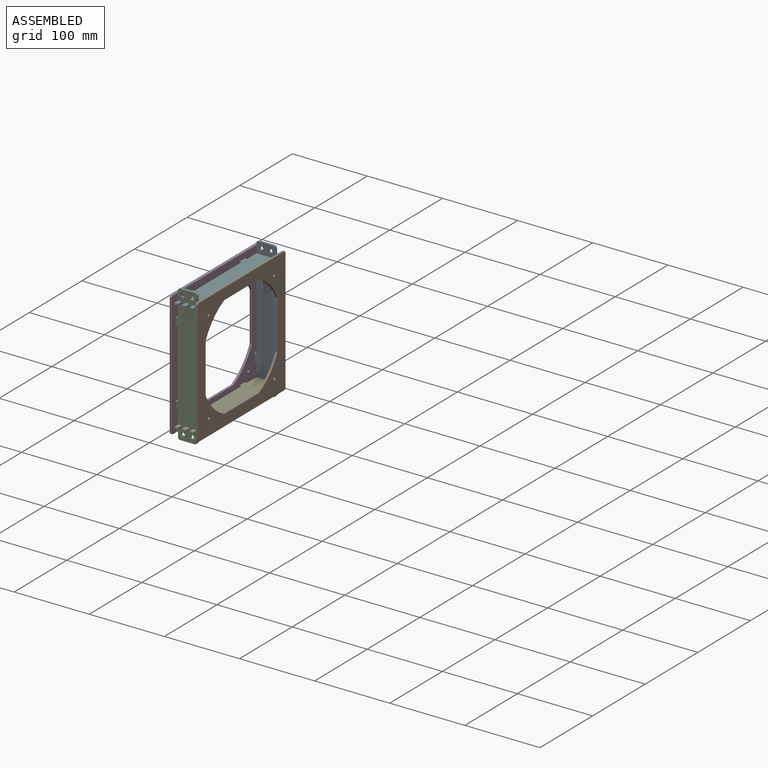
[diagram: assembled view]
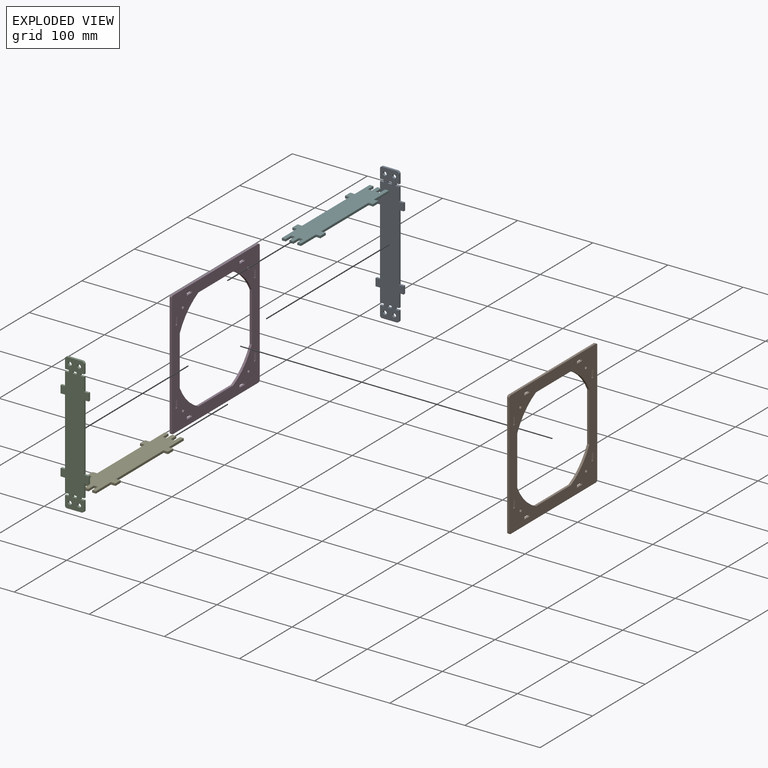
[diagram: exploded view]
GUIDED TOUR — MATED ASSEMBLY (Onshape document 5782b217e4b01a6b0f3e6d6c, AutoMate assembly 5782b217e4b01a6b0f3e6d6c_82af21a310dccb794c6f232e_d33640d6e8292c3f558e3241_default)

This assembly has 6 components, labeled P0..P5 below (a component is one placed occurrence of a part; the same part can appear more than once), held together by 6 mates. A mate is a constraint between two components; its type names the relative motion it leaves free:
  FASTENED — locks the two components together rigidly (no relative motion),
  SLIDER — leaves translation along the listed axis free.
Axis/direction vectors are unit vectors and 'through' points are millimeter coordinates, both in the assembly's world frame.

MATES
  1. SLIDER "Slider 1": P3 <-> P4, axis (-1.000, 0.000, 0.000) through (22.36, 39.31, -82.21) mm
  2. FASTENED "Fastened 4": P4 <-> P2, direction (0.000, -1.000, 0.000) through (30.36, 21.31, -82.21) mm
  3. FASTENED "Fastened 2": P5 <-> P0, direction (0.000, 1.000, 0.000) through (45.76, 167.31, 66.79) mm
  4. SLIDER "Slider 2": P1 <-> P4, axis (1.000, 0.000, 0.000) through (53.76, 39.31, -82.21) mm
  5. FASTENED "Fastened 1": P5 <-> P2, direction (0.000, -1.000, 0.000) through (30.36, 21.31, 66.79) mm
  6. FASTENED "Fastened 3": P0 <-> P4, direction (0.000, 1.000, 0.000) through (30.36, 167.31, -82.21) mm

ASSEMBLY ORDER
  1. P3 — the base component [order verified]
  2. P4 [order verified]
  3. P0 [order verified]
  4. P5 [order verified]
  5. P1 [order verified]
  6. P2 [order verified]
Order-tag legend:
  [order verified] — this step's position reverses a verified removal order: the component was checked to insert without passing through the ones already placed.

Of the 6 components, 2 carry the full construction recipe — the FeatureScript program that regenerates the part's solid from scratch; the rest are supplied as boundary geometry only.
Each toured component is shown spotlighted twice — in the assembled view, then in the exploded view, where a leader line traces a displaced component back to its assembled socket (saturated green if recipe-attached, orange if geometry-only; every other component desaturated gray) — followed by its recipe or geometry summary and the mates that hold it.
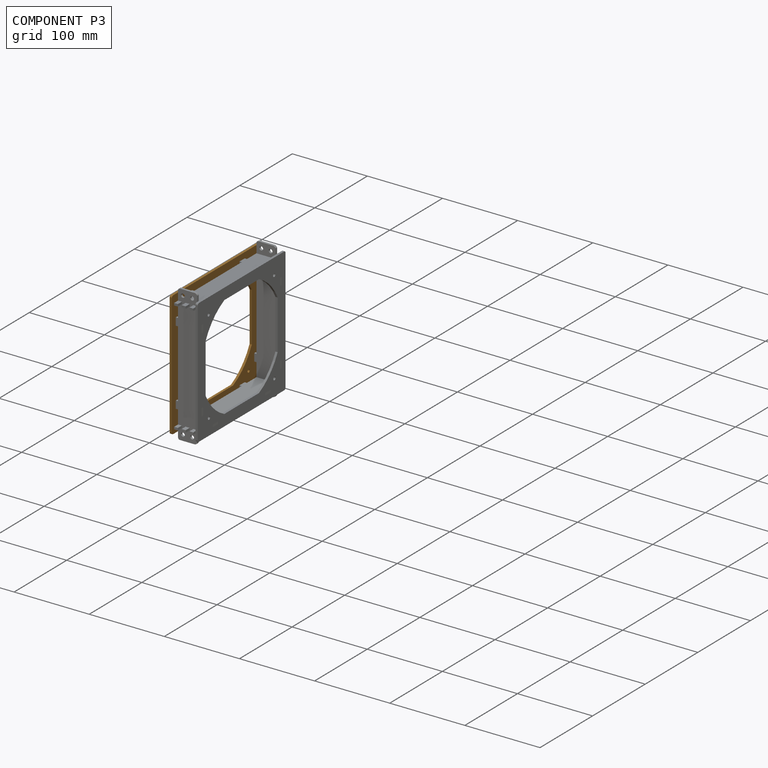
[diagram: component P3 — assembled]
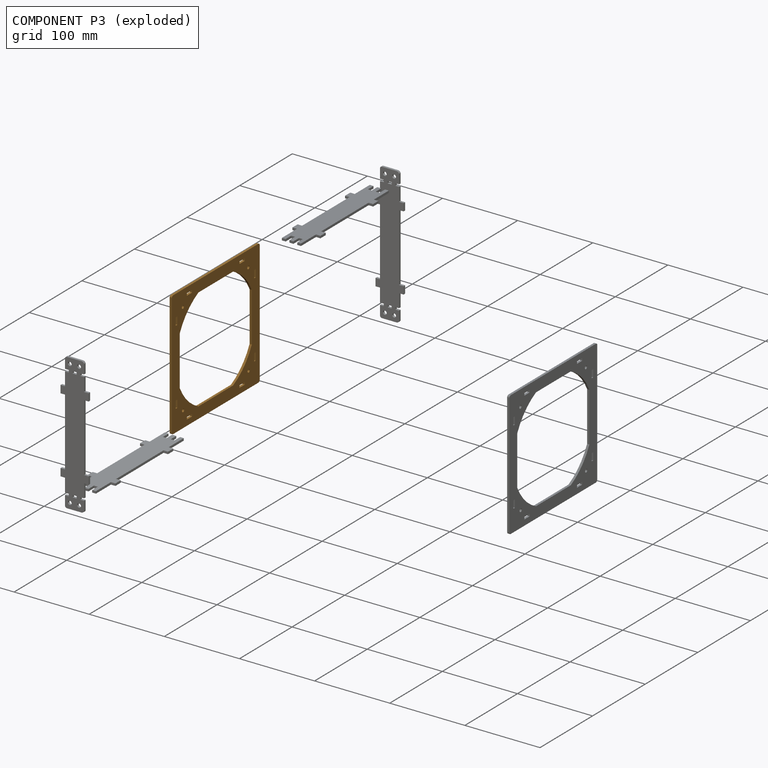
[diagram: component P3 — exploded]
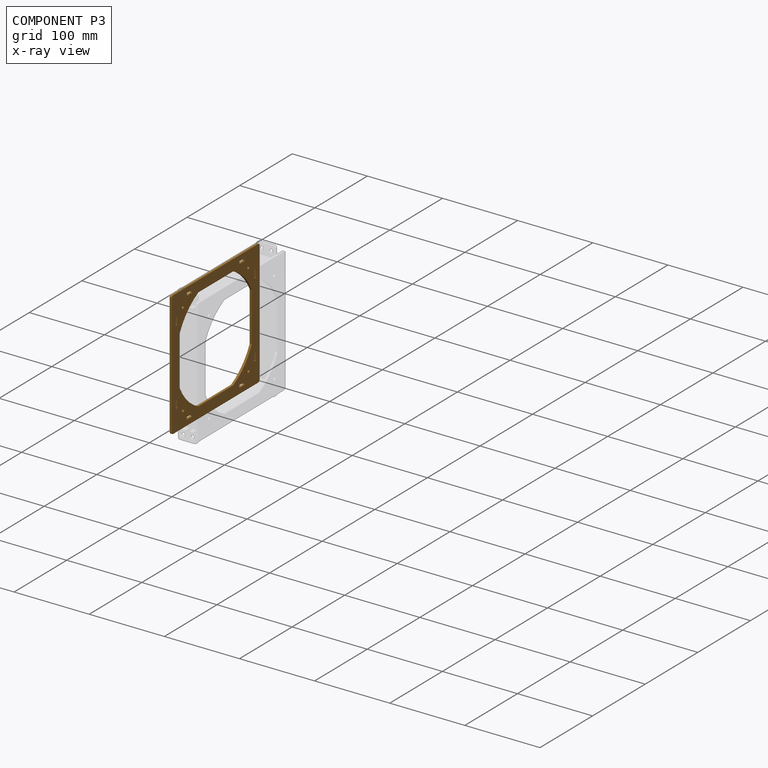
[diagram: component P3 — x-ray view]
COMPONENT P3 — geometry summary (no construction recipe available for this part):
  bounding box: 167.0 x 167.0 x 3.0 mm
  B-rep topology: 1 solid, 54 faces, 312 edges
  volume: 32314 mm^3 (39% of its bounding box)
  symmetry: 2-fold rotationally symmetric about the x axis; 2-fold rotationally symmetric about the y axis; 4-fold rotationally symmetric about the z axis; mirror-symmetric across its x mid-plane, y mid-plane, z mid-plane
Held by: SLIDER mate "Slider 1" to P4.
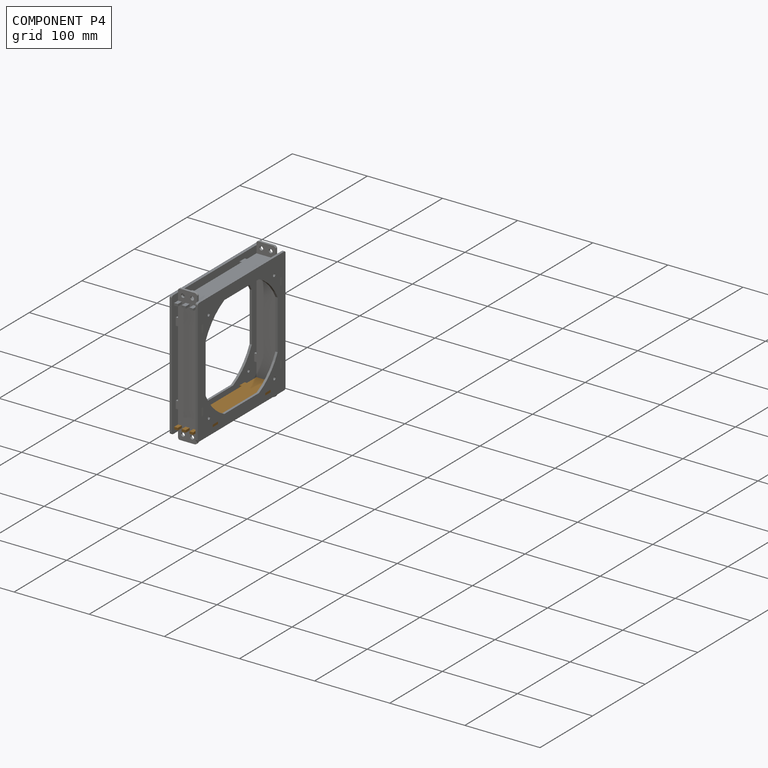
[diagram: component P4 — assembled]
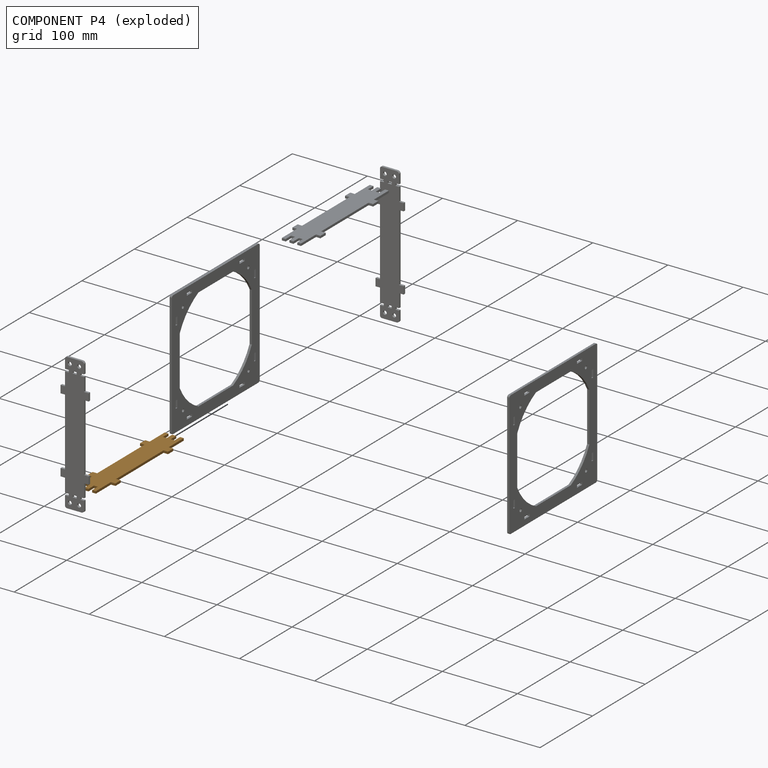
[diagram: component P4 — exploded]
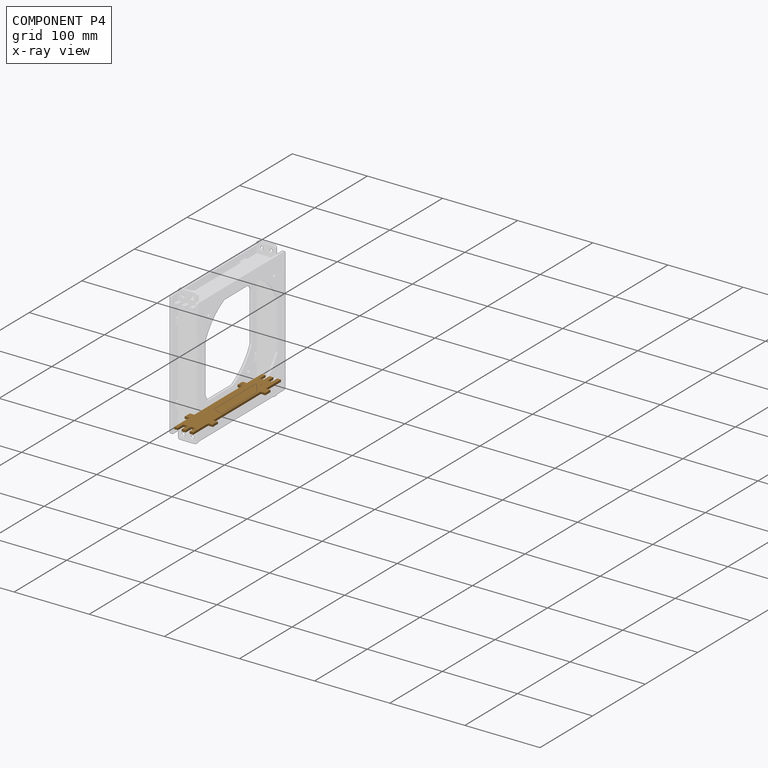
[diagram: component P4 — x-ray view]
COMPONENT P4 — geometry summary (no construction recipe available for this part):
  bounding box: 167.0 x 37.4 x 3.0 mm
  B-rep topology: 1 solid, 38 faces, 216 edges
  volume: 12815 mm^3 (68% of its bounding box)
  symmetry: 2-fold rotationally symmetric about the x axis; 2-fold rotationally symmetric about the y axis; 2-fold rotationally symmetric about the z axis; mirror-symmetric across its x mid-plane, y mid-plane, z mid-plane
Held by: SLIDER mate "Slider 1" to P3; FASTENED mate "Fastened 4" to P2; SLIDER mate "Slider 2" to P1; FASTENED mate "Fastened 3" to P0.
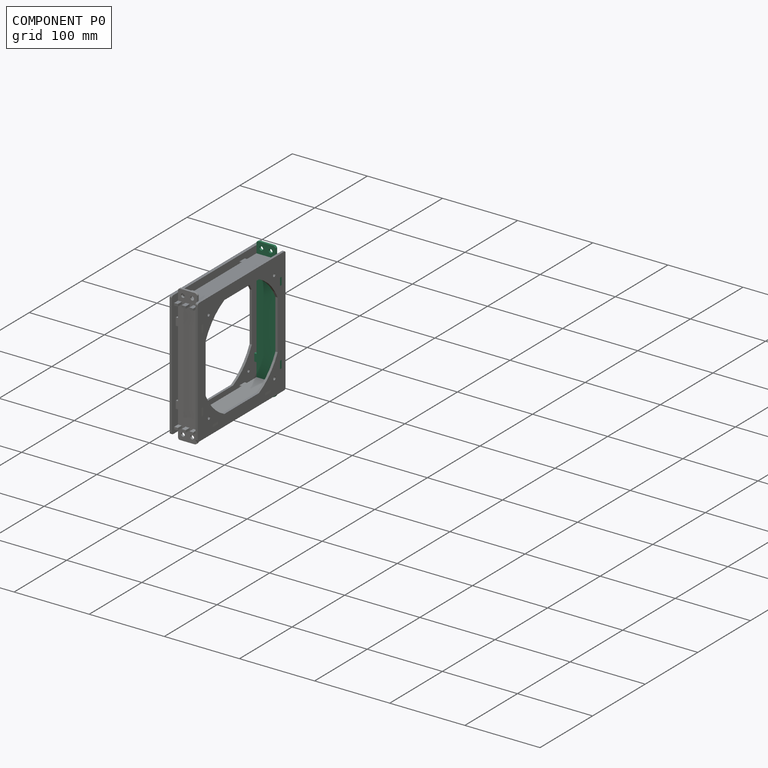
[diagram: component P0 — assembled]
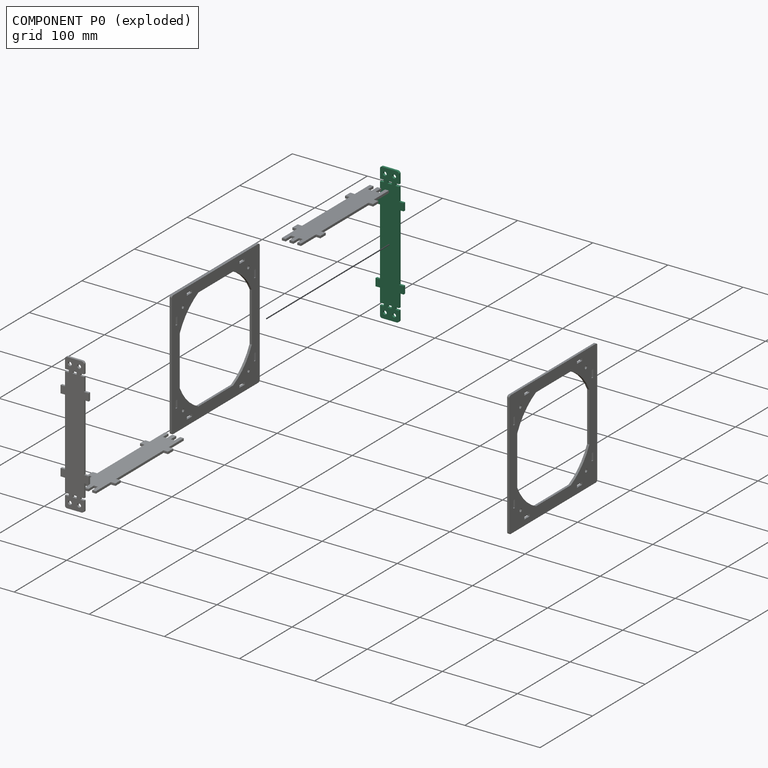
[diagram: component P0 — exploded]
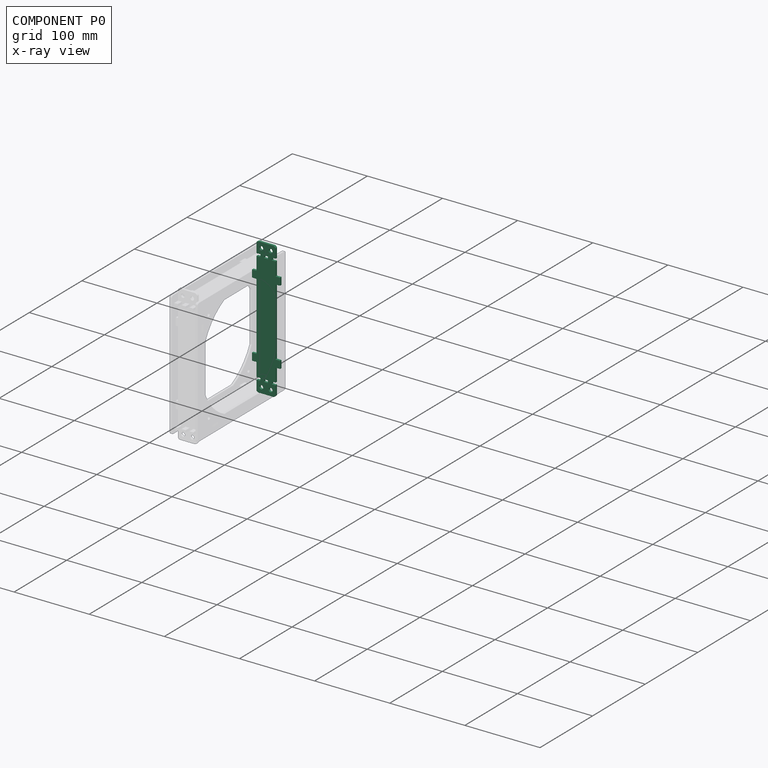
[diagram: component P0 — x-ray view]
COMPONENT P0 — recipe-attached (CADFS 00194423, mesh-verified: the recipe's output STEP matches this component's geometry to below the mesh-comparison resolution (tessellation chordal tolerance ~0.279 mm)).
Held by: FASTENED mate "Fastened 2" to P5; FASTENED mate "Fastened 3" to P4.
Construction recipe (FeatureScript — the CAD program that rebuilds this solid; sketch coordinates are in the units given by the * unit suffixes, e.g. mm):

FeatureScript 1511;
import(path : "onshape/std/geometry.fs", version : "1511.0");
import(path : "onshape/std/common.fs", version : "1511.0");
const mm = millimeter;
const VERTEX = EntityType.VERTEX;
const EDGE = EntityType.EDGE;
const FACE = EntityType.FACE;
const BODY = EntityType.BODY;
function v(x, y){return vector(x, y);}
function OD(order){return orderDisambiguation(order);}
function OSD(set){return originalSetDisambiguation(set);}
function TD(topology){return topologyDisambiguation(topology);}
function TDD(query){return trueDependencyDisambiguation(query);}
function sQuery(a, b, c) {return sketchEntityQuery(a, b, c);}

annotation { "Feature Type Name" : "Feature", "Feature Type Description" : "" }
export const myFeature = defineFeature(function(context is Context, id is Id, definition is map)
    precondition{}
    {
        {
            var Q0;
            Q0=qCreatedBy(makeId("Top.planeOp"),FACE);
            var sketch = newSketch(context, id + "F0", { "sketchPlane" : qUnion([Q0])});
            skLineSegment(sketch, "E0", {"start": v(0, 91) * mm, "end": v(-10, 91) * mm});
            skLineSegment(sketch, "E1", {"start": v(-12.5, 76) * mm, "end": v(-9.5, 76) * mm});
            skLineSegment(sketch, "E2", {"start": v(-9.5, 76) * mm, "end": v(-9.5, 73) * mm});
            skLineSegment(sketch, "E3", {"start": v(-9.5, 73) * mm, "end": v(-12.5, 73) * mm});
            skLineSegment(sketch, "E4", {"start": v(-12.5, 88.5) * mm, "end": v(-12.5, 76) * mm});
            skLineSegment(sketch, "E5", {"start": v(0, 76) * mm, "end": v(-3, 76) * mm});
            skLineSegment(sketch, "E6", {"start": v(-3, 76) * mm, "end": v(-3, 73) * mm});
            skLineSegment(sketch, "E7", {"start": v(-3, 73) * mm, "end": v(0, 73) * mm});
            skCircle(sketch, "E8", {"center": v(-6.25, 83.5) * mm, "radius": 2.5 * mm});
            skPoint(sketch, "E8.centerSnap0", {"position": v(-12.5, 83.5) * mm});
            skPoint(sketch, "E8.centerSnap1", {"position": v(-6.25, 91) * mm});
            skPoint(sketch, "E9.visualSharp", {"position": v(-12.5, 91) * mm});
            skArc(sketch, "E9.filletArc", {"start": v(-10, 91) * mm, "mid": v(-11.77, 90.27) * mm, "end": v(-12.5, 88.5) * mm});
            skLineSegment(sketch, "E10", {"start": v(-12.5, 35) * mm, "end": v(-17.84, 35) * mm});
            skLineSegment(sketch, "E11", {"start": v(-18.5, 35.66) * mm, "end": v(-18.5, 44.34) * mm});
            skLineSegment(sketch, "E12", {"start": v(-17.84, 45) * mm, "end": v(-12.5, 45) * mm});
            skLineSegment(sketch, "E13", {"start": v(-12.5, 45) * mm, "end": v(-12.5, 73) * mm});
            skLineSegment(sketch, "E14", {"start": v(-12.5, 35) * mm, "end": v(-12.5, 0) * mm});
            skPoint(sketch, "E15.visualSharp", {"position": v(-18.5, 45) * mm});
            skArc(sketch, "E15.filletArc", {"start": v(-17.84, 45) * mm, "mid": v(-18.3, 44.8) * mm, "end": v(-18.5, 44.34) * mm});
            skPoint(sketch, "E16.visualSharp", {"position": v(-18.5, 35) * mm});
            skArc(sketch, "E16.filletArc", {"start": v(-18.5, 35.66) * mm, "mid": v(-18.3, 35.2) * mm, "end": v(-17.84, 35) * mm});
            skArc(sketch, "E17.MirrorCS", {"start": v(10, 91) * mm, "mid": v(11.77, 90.27) * mm, "end": v(12.5, 88.5) * mm});
            skLineSegment(sketch, "E18.MirrorCS", {"start": v(9.5, 76) * mm, "end": v(9.5, 73) * mm});
            skLineSegment(sketch, "E19.MirrorCS", {"start": v(9.5, 73) * mm, "end": v(12.5, 73) * mm});
            skLineSegment(sketch, "E20.MirrorCS", {"start": v(3, 76) * mm, "end": v(3, 73) * mm});
            skLineSegment(sketch, "E21.MirrorCS", {"start": v(12.5, 76) * mm, "end": v(9.5, 76) * mm});
            skLineSegment(sketch, "E22.MirrorCS", {"start": v(12.5, 35) * mm, "end": v(17.84, 35) * mm});
            skLineSegment(sketch, "E23.MirrorCS", {"start": v(17.84, 45) * mm, "end": v(12.5, 45) * mm});
            skLineSegment(sketch, "E24.MirrorCS", {"start": v(3, 73) * mm, "end": v(0, 73) * mm});
            skLineSegment(sketch, "E25.MirrorCS", {"start": v(0, 76) * mm, "end": v(3, 76) * mm});
            skPoint(sketch, "E26.MirrorP", {"position": v(6.25, 91) * mm});
            skCircle(sketch, "E27.MirrorC", {"center": v(6.25, 83.5) * mm, "radius": 2.5 * mm});
            skLineSegment(sketch, "E28.MirrorCS", {"start": v(0, 91) * mm, "end": v(10, 91) * mm});
            skLineSegment(sketch, "E29.MirrorCS", {"start": v(12.5, 45) * mm, "end": v(12.5, 73) * mm});
            skLineSegment(sketch, "E30.MirrorCS", {"start": v(12.5, 35) * mm, "end": v(12.5, 0) * mm});
            skLineSegment(sketch, "E31.MirrorCS", {"start": v(12.5, 88.5) * mm, "end": v(12.5, 76) * mm});
            skArc(sketch, "E32.MirrorCS", {"start": v(-17.84, -45) * mm, "mid": v(-18.3, -44.8) * mm, "end": v(-18.5, -44.34) * mm});
            skArc(sketch, "E33.MirrorCS", {"start": v(17.84, -45) * mm, "mid": v(18.3, -44.8) * mm, "end": v(18.5, -44.34) * mm});
            skArc(sketch, "E34.MirrorCS", {"start": v(-18.5, -35.66) * mm, "mid": v(-18.3, -35.2) * mm, "end": v(-17.84, -35) * mm});
            skArc(sketch, "E35.MirrorCS", {"start": v(-10, -91) * mm, "mid": v(-11.77, -90.27) * mm, "end": v(-12.5, -88.5) * mm});
            skArc(sketch, "E36.MirrorCS", {"start": v(32.1, -123.66) * mm, "mid": v(31.9, -123.2) * mm, "end": v(31.44, -123) * mm});
            skArc(sketch, "E37.MirrorCS", {"start": v(10, -91) * mm, "mid": v(11.77, -90.27) * mm, "end": v(12.5, -88.5) * mm});
            skLineSegment(sketch, "E38.MirrorCS", {"start": v(-17.84, -45) * mm, "end": v(-12.5, -45) * mm});
            skLineSegment(sketch, "E39.MirrorCS", {"start": v(9.5, -76) * mm, "end": v(9.5, -73) * mm});
            skLineSegment(sketch, "E40.MirrorCS", {"start": v(12.5, -76) * mm, "end": v(9.5, -76) * mm});
            skLineSegment(sketch, "E41.MirrorCS", {"start": v(3, -73) * mm, "end": v(0, -73) * mm});
            skLineSegment(sketch, "E42.MirrorCS", {"start": v(12.5, -35) * mm, "end": v(17.84, -35) * mm});
            skLineSegment(sketch, "E43.MirrorCS", {"start": v(3, -76) * mm, "end": v(3, -73) * mm});
            skLineSegment(sketch, "E44.MirrorCS", {"start": v(17.84, -45) * mm, "end": v(12.5, -45) * mm});
            skLineSegment(sketch, "E45.MirrorCS", {"start": v(-9.5, -73) * mm, "end": v(-12.5, -73) * mm});
            skLineSegment(sketch, "E46.MirrorCS", {"start": v(0, -76) * mm, "end": v(3, -76) * mm});
            skLineSegment(sketch, "E47.MirrorCS", {"start": v(-12.5, -76) * mm, "end": v(-9.5, -76) * mm});
            skLineSegment(sketch, "E48.MirrorCS", {"start": v(-9.5, -76) * mm, "end": v(-9.5, -73) * mm});
            skLineSegment(sketch, "E49.MirrorCS", {"start": v(0, -76) * mm, "end": v(-3, -76) * mm});
            skLineSegment(sketch, "E50.MirrorCS", {"start": v(-3, -76) * mm, "end": v(-3, -73) * mm});
            skLineSegment(sketch, "E51.MirrorCS", {"start": v(-3, -73) * mm, "end": v(0, -73) * mm});
            skLineSegment(sketch, "E52.MirrorCS", {"start": v(9.5, -73) * mm, "end": v(12.5, -73) * mm});
            skLineSegment(sketch, "E53.MirrorCS", {"start": v(-12.5, -35) * mm, "end": v(-17.84, -35) * mm});
            skLineSegment(sketch, "E54.MirrorCS", {"start": v(0, -91) * mm, "end": v(10, -91) * mm});
            skLineSegment(sketch, "E55.MirrorCS", {"start": v(-18.5, -35.66) * mm, "end": v(-18.5, -44.34) * mm});
            skLineSegment(sketch, "E56.MirrorCS", {"start": v(12.5, -88.5) * mm, "end": v(12.5, -76) * mm});
            skPoint(sketch, "E57.MirrorP", {"position": v(-12.5, -83.5) * mm});
            skPoint(sketch, "E58.MirrorP", {"position": v(-12.5, -91) * mm});
            skLineSegment(sketch, "E59.MirrorCS", {"start": v(18.5, -35.66) * mm, "end": v(18.5, -44.34) * mm});
            skPoint(sketch, "E60.MirrorP", {"position": v(-18.5, -45) * mm});
            skPoint(sketch, "E61.MirrorP", {"position": v(12.5, -91) * mm});
            skPoint(sketch, "E62.MirrorP", {"position": v(-6.25, -91) * mm});
            skCircle(sketch, "E63.MirrorC", {"center": v(6.25, -83.5) * mm, "radius": 2.5 * mm});
            skLineSegment(sketch, "E64.MirrorCS", {"start": v(-12.5, -88.5) * mm, "end": v(-12.5, -76) * mm});
            skLineSegment(sketch, "E65.MirrorCS", {"start": v(0, -91) * mm, "end": v(-10, -91) * mm});
            skLineSegment(sketch, "E66.MirrorCS", {"start": v(-12.5, -35) * mm, "end": v(-12.5, 0) * mm});
            skPoint(sketch, "E67.MirrorP", {"position": v(12.5, -83.5) * mm});
            skCircle(sketch, "E68.MirrorC", {"center": v(-6.25, -83.5) * mm, "radius": 2.5 * mm});
            skLineSegment(sketch, "E69.MirrorCS", {"start": v(-12.5, -45) * mm, "end": v(-12.5, -73) * mm});
            skLineSegment(sketch, "E70.MirrorCS", {"start": v(12.5, -35) * mm, "end": v(12.5, 0) * mm});
            skPoint(sketch, "E71.MirrorP", {"position": v(-18.5, -35) * mm});
            skLineSegment(sketch, "E72.MirrorCS", {"start": v(12.5, -45) * mm, "end": v(12.5, -73) * mm});
            skPoint(sketch, "E73.MirrorP", {"position": v(32.1, -123) * mm});
            skPoint(sketch, "E74.MirrorP", {"position": v(6.25, -91) * mm});
            skLineSegment(sketch, "E75", {"start": v(35.48, 76) * mm, "end": v(40.48, 76) * mm});
            skLineSegment(sketch, "E76", {"start": v(40.48, 76) * mm, "end": v(40.48, 73) * mm});
            skLineSegment(sketch, "E77", {"start": v(40.48, 73) * mm, "end": v(35.48, 73) * mm});
            skLineSegment(sketch, "E78", {"start": v(35.48, 88.56) * mm, "end": v(35.48, 76) * mm});
            skLineSegment(sketch, "E79", {"start": v(45.48, 76) * mm, "end": v(45.48, 73) * mm});
            skCircle(sketch, "E80", {"center": v(41.83, 83.56) * mm, "radius": 2.5 * mm});
            skPoint(sketch, "E80.centerSnap0", {"position": v(35.48, 83.56) * mm});
            skPoint(sketch, "E80.centerSnap1", {"position": v(41.83, 91.06) * mm});
            skPoint(sketch, "E81.visualSharp", {"position": v(35.48, 91.13) * mm});
            skArc(sketch, "E81.filletArc", {"start": v(37.98, 91.06) * mm, "mid": v(36.2, 90.33) * mm, "end": v(35.48, 88.56) * mm});
            skLineSegment(sketch, "E82", {"start": v(35.48, 45) * mm, "end": v(29.48, 45) * mm});
            skLineSegment(sketch, "E83", {"start": v(29.48, 55) * mm, "end": v(35.48, 55) * mm});
            skLineSegment(sketch, "E84", {"start": v(35.48, 55) * mm, "end": v(35.48, 73) * mm});
            skLineSegment(sketch, "E85", {"start": v(35.48, 45) * mm, "end": v(35.48, 0) * mm});
            skArc(sketch, "E86.MirrorCS", {"start": v(57.98, 91.06) * mm, "mid": v(59.74, 90.18) * mm, "end": v(60.88, 88.56) * mm});
            skLineSegment(sketch, "E87.MirrorCS", {"start": v(55.88, 76) * mm, "end": v(55.88, 73) * mm});
            skLineSegment(sketch, "E88.MirrorCS", {"start": v(55.88, 73) * mm, "end": v(60.88, 73) * mm});
            skLineSegment(sketch, "E89.MirrorCS", {"start": v(50.88, 76) * mm, "end": v(50.88, 73) * mm});
            skLineSegment(sketch, "E90.MirrorCS", {"start": v(60.88, 76) * mm, "end": v(55.88, 76) * mm});
            skLineSegment(sketch, "E91.MirrorCS", {"start": v(60.88, 45) * mm, "end": v(66.88, 45) * mm});
            skLineSegment(sketch, "E92.MirrorCS", {"start": v(66.88, 55) * mm, "end": v(60.88, 55) * mm});
            skPoint(sketch, "E93.MirrorP", {"position": v(54.23, 91.06) * mm});
            skCircle(sketch, "E94.MirrorC", {"center": v(54.23, 83.56) * mm, "radius": 2.5 * mm});
            skPoint(sketch, "E95.MirrorP", {"position": v(60.48, 91.06) * mm});
            skPoint(sketch, "E96.MirrorP", {"position": v(60.48, 83.56) * mm});
            skLineSegment(sketch, "E97.MirrorCS", {"start": v(60.88, 55) * mm, "end": v(60.88, 73) * mm});
            skLineSegment(sketch, "E98.MirrorCS", {"start": v(60.88, 45) * mm, "end": v(60.88, 0) * mm});
            skLineSegment(sketch, "E99.MirrorCS", {"start": v(60.88, 88.56) * mm, "end": v(60.88, 76) * mm});
            skLineSegment(sketch, "E100", {"start": v(37.98, 91.06) * mm, "end": v(57.98, 91.06) * mm});
            skLineSegment(sketch, "E101", {"start": v(45.48, 76) * mm, "end": v(50.88, 76) * mm});
            skLineSegment(sketch, "E102", {"start": v(50.88, 73) * mm, "end": v(45.48, 73) * mm});
            skLineSegment(sketch, "E103", {"start": v(17.84, 45) * mm, "end": v(17.84, 35) * mm});
            skLineSegment(sketch, "E104", {"start": v(29.48, 55) * mm, "end": v(29.48, 45) * mm});
            skLineSegment(sketch, "E105", {"start": v(66.88, 55) * mm, "end": v(66.88, 45) * mm});
            skArc(sketch, "E106.MirrorCS", {"start": v(37.98, -91.06) * mm, "mid": v(36.2, -90.33) * mm, "end": v(35.48, -88.56) * mm});
            skArc(sketch, "E107.MirrorCS", {"start": v(57.98, -91.06) * mm, "mid": v(59.74, -90.18) * mm, "end": v(60.88, -88.56) * mm});
            skLineSegment(sketch, "E108.MirrorCS", {"start": v(45.48, -76) * mm, "end": v(45.48, -73) * mm});
            skLineSegment(sketch, "E109.MirrorCS", {"start": v(55.88, -76) * mm, "end": v(55.88, -73) * mm});
            skLineSegment(sketch, "E110.MirrorCS", {"start": v(66.88, -55) * mm, "end": v(60.88, -55) * mm});
            skLineSegment(sketch, "E111.MirrorCS", {"start": v(35.48, -76) * mm, "end": v(40.48, -76) * mm});
            skLineSegment(sketch, "E112.MirrorCS", {"start": v(55.88, -73) * mm, "end": v(60.88, -73) * mm});
            skLineSegment(sketch, "E113.MirrorCS", {"start": v(35.48, -45) * mm, "end": v(29.48, -45) * mm});
            skLineSegment(sketch, "E114.MirrorCS", {"start": v(45.48, -76) * mm, "end": v(50.88, -76) * mm});
            skLineSegment(sketch, "E115.MirrorCS", {"start": v(60.88, -76) * mm, "end": v(55.88, -76) * mm});
            skLineSegment(sketch, "E116.MirrorCS", {"start": v(50.88, -76) * mm, "end": v(50.88, -73) * mm});
            skLineSegment(sketch, "E117.MirrorCS", {"start": v(29.48, -55) * mm, "end": v(35.48, -55) * mm});
            skLineSegment(sketch, "E118.MirrorCS", {"start": v(50.88, -73) * mm, "end": v(45.48, -73) * mm});
            skLineSegment(sketch, "E119.MirrorCS", {"start": v(40.48, -73) * mm, "end": v(35.48, -73) * mm});
            skLineSegment(sketch, "E120.MirrorCS", {"start": v(40.48, -76) * mm, "end": v(40.48, -73) * mm});
            skLineSegment(sketch, "E121.MirrorCS", {"start": v(60.88, -45) * mm, "end": v(66.88, -45) * mm});
            skLineSegment(sketch, "E122.MirrorCS", {"start": v(60.88, -88.56) * mm, "end": v(60.88, -76) * mm});
            skCircle(sketch, "E123.MirrorC", {"center": v(54.23, -83.56) * mm, "radius": 2.5 * mm});
            skLineSegment(sketch, "E124.MirrorCS", {"start": v(35.48, -88.56) * mm, "end": v(35.48, -76) * mm});
            skPoint(sketch, "E125.MirrorP", {"position": v(35.48, -91.13) * mm});
            skLineSegment(sketch, "E126.MirrorCS", {"start": v(29.48, -55) * mm, "end": v(29.48, -45) * mm});
            skPoint(sketch, "E127.MirrorP", {"position": v(41.83, -91.06) * mm});
            skPoint(sketch, "E128.MirrorP", {"position": v(60.48, -83.56) * mm});
            skLineSegment(sketch, "E129.MirrorCS", {"start": v(60.88, -45) * mm, "end": v(60.88, 0) * mm});
            skLineSegment(sketch, "E130.MirrorCS", {"start": v(37.98, -91.06) * mm, "end": v(57.98, -91.06) * mm});
            skCircle(sketch, "E131.MirrorC", {"center": v(41.83, -83.56) * mm, "radius": 2.5 * mm});
            skLineSegment(sketch, "E132.MirrorCS", {"start": v(35.48, -55) * mm, "end": v(35.48, -73) * mm});
            skPoint(sketch, "E133.MirrorP", {"position": v(35.48, -83.56) * mm});
            skPoint(sketch, "E134.MirrorP", {"position": v(60.48, -91.06) * mm});
            skLineSegment(sketch, "E135.MirrorCS", {"start": v(60.88, -55) * mm, "end": v(60.88, -73) * mm});
            skLineSegment(sketch, "E136.MirrorCS", {"start": v(35.48, -45) * mm, "end": v(35.48, 0) * mm});
            skPoint(sketch, "E137.MirrorP", {"position": v(54.23, -91.06) * mm});
            skLineSegment(sketch, "E138.MirrorCS", {"start": v(66.88, -55) * mm, "end": v(66.88, -45) * mm});
            skSolve(sketch);
        }
        {
            var Q0;
            Q0=makeQuery(id+"F0.imprint","IMPRINT",FACE,{"disambiguationData":[TD([[makeQuery(id+"F0.imprint","IMPRINT",EDGE,{"derivedFrom":sQuery(id+"F0.wireOp",EDGE,"E75")}),1.0]])]});
            extrude(context, id + "F1", {"entities" : qUnion([Q0]), "depth" : 3 * mm});
        }
    });
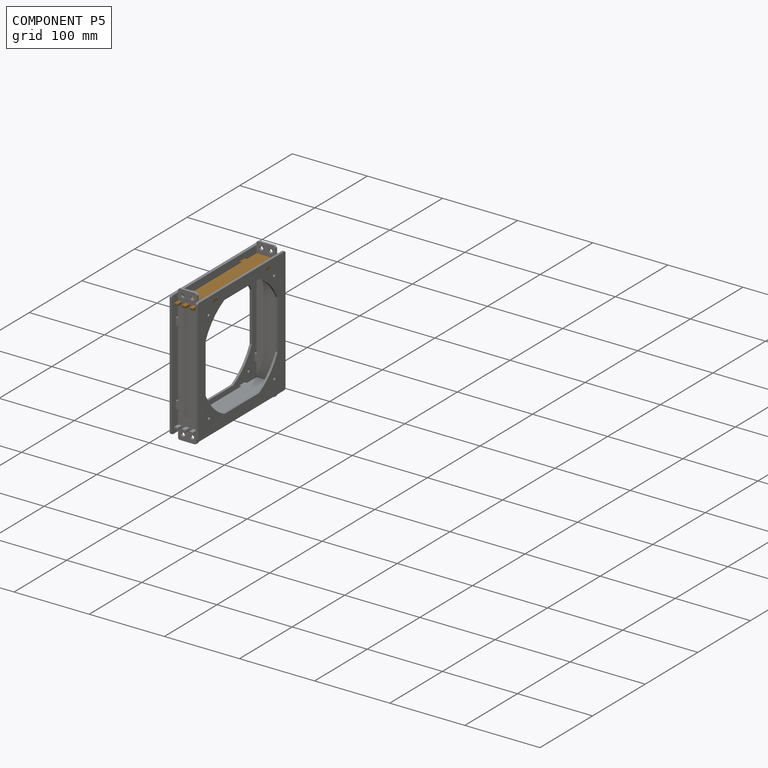
[diagram: component P5 — assembled]
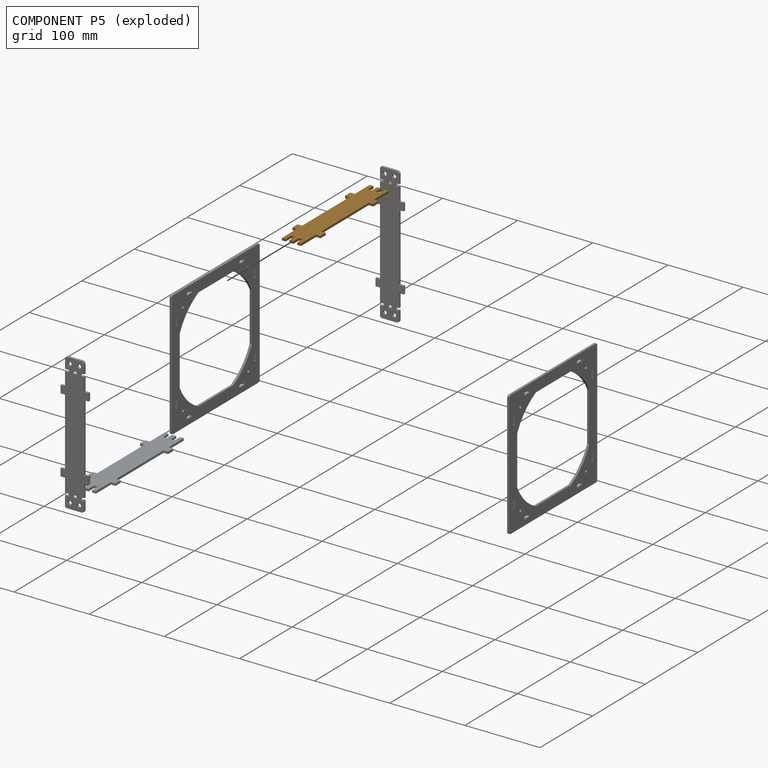
[diagram: component P5 — exploded]
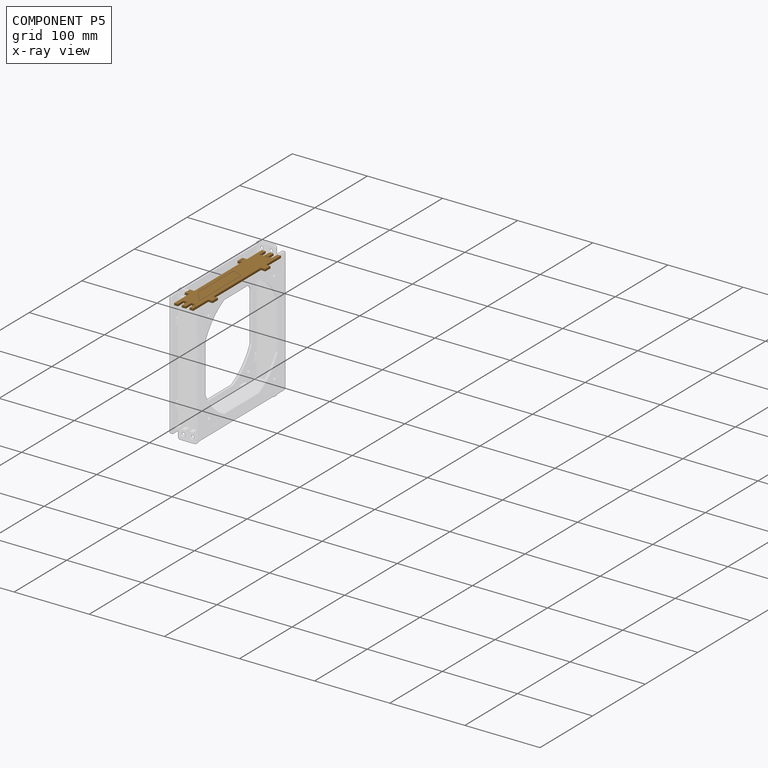
[diagram: component P5 — x-ray view]
COMPONENT P5 — geometry summary (no construction recipe available for this part):
  bounding box: 167.0 x 37.4 x 3.0 mm
  B-rep topology: 1 solid, 38 faces, 216 edges
  volume: 12815 mm^3 (68% of its bounding box)
  symmetry: 2-fold rotationally symmetric about the x axis; 2-fold rotationally symmetric about the y axis; 2-fold rotationally symmetric about the z axis; mirror-symmetric across its x mid-plane, y mid-plane, z mid-plane
Held by: FASTENED mate "Fastened 2" to P0; FASTENED mate "Fastened 1" to P2.
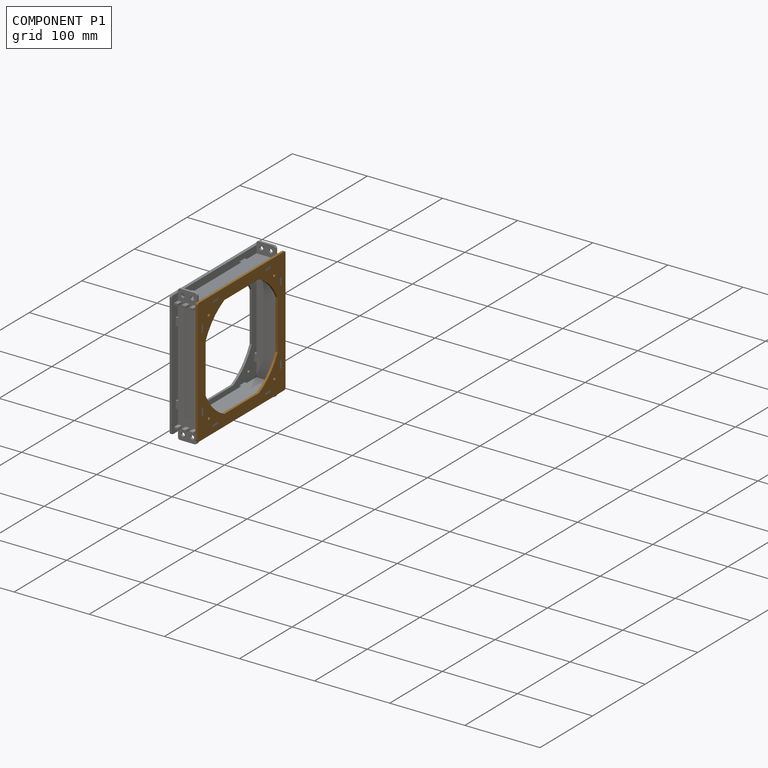
[diagram: component P1 — assembled]
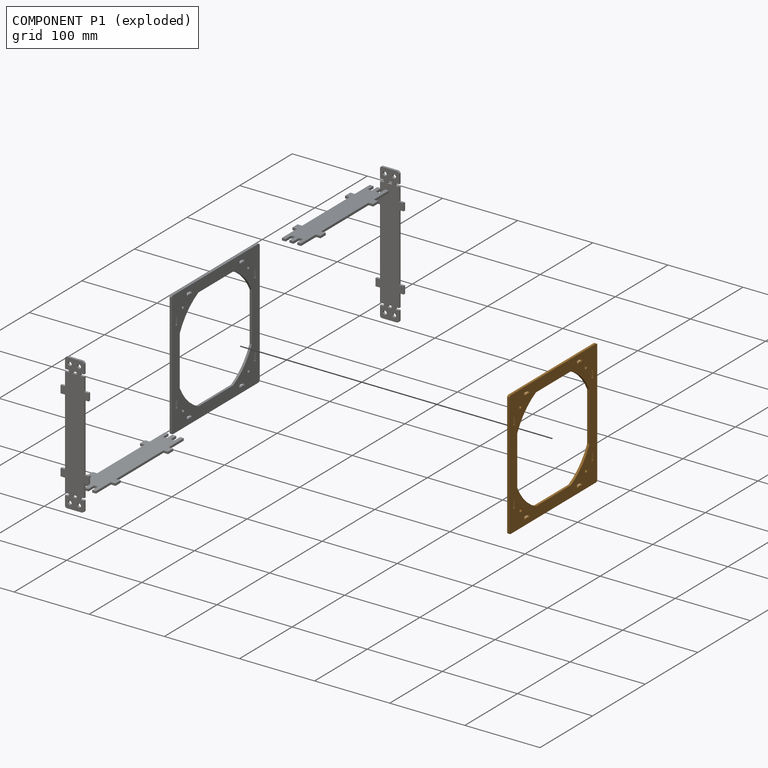
[diagram: component P1 — exploded]
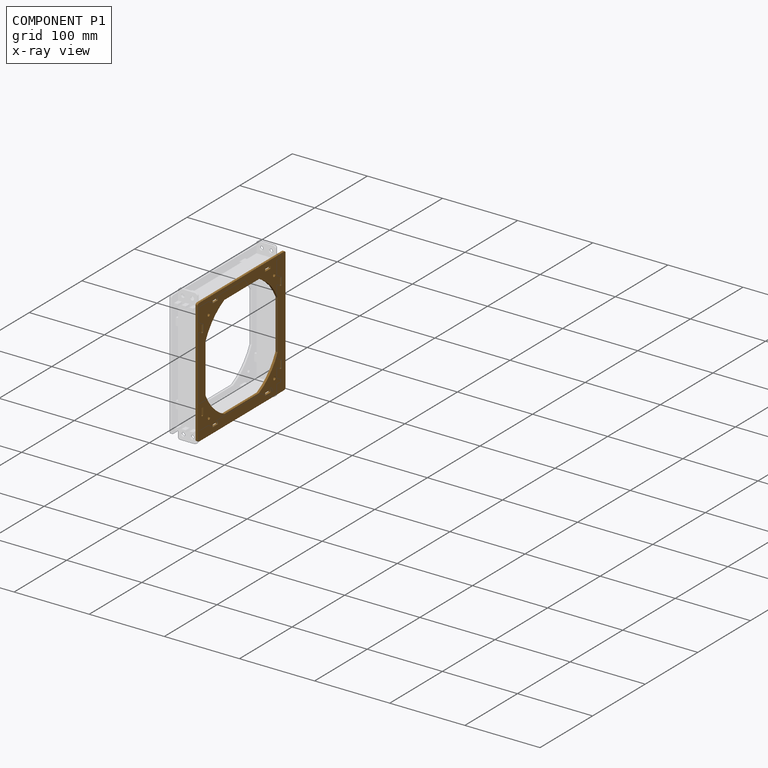
[diagram: component P1 — x-ray view]
COMPONENT P1 — geometry summary (no construction recipe available for this part):
  bounding box: 167.0 x 167.0 x 3.0 mm
  B-rep topology: 1 solid, 54 faces, 312 edges
  volume: 32314 mm^3 (39% of its bounding box)
  symmetry: 2-fold rotationally symmetric about the x axis; 2-fold rotationally symmetric about the y axis; 4-fold rotationally symmetric about the z axis; mirror-symmetric across its x mid-plane, y mid-plane, z mid-plane
Held by: SLIDER mate "Slider 2" to P4.
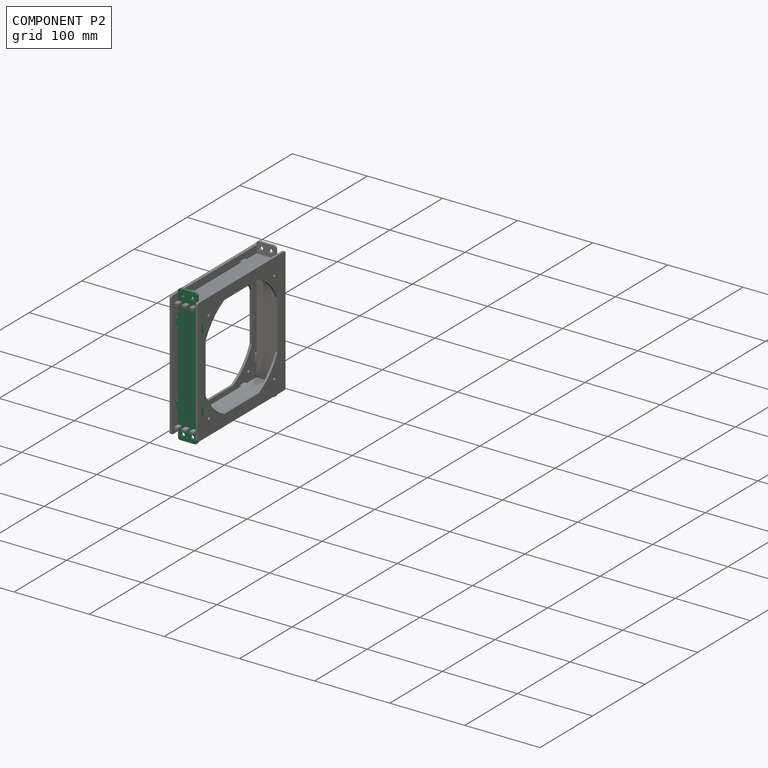
[diagram: component P2 — assembled]
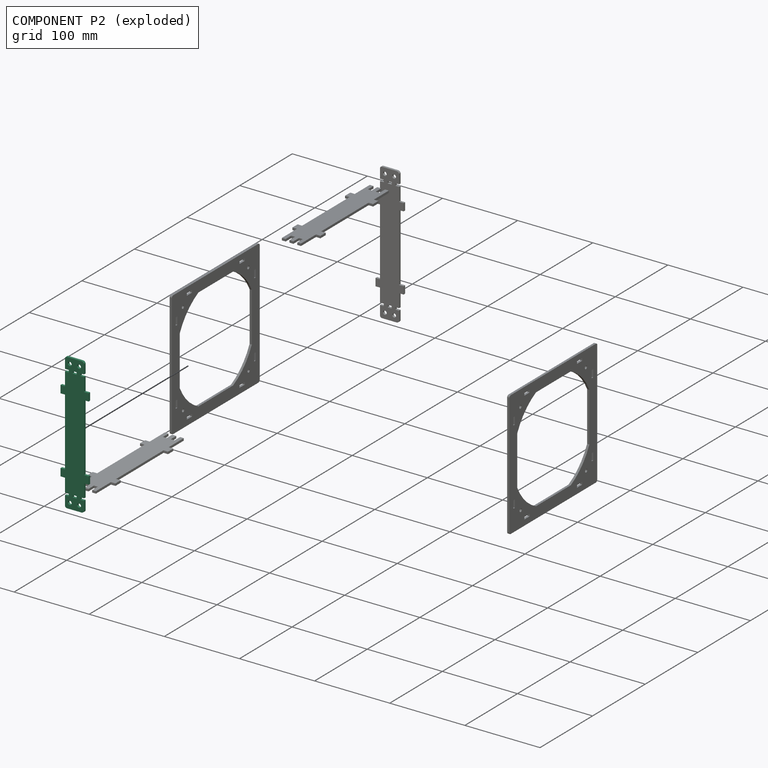
[diagram: component P2 — exploded]
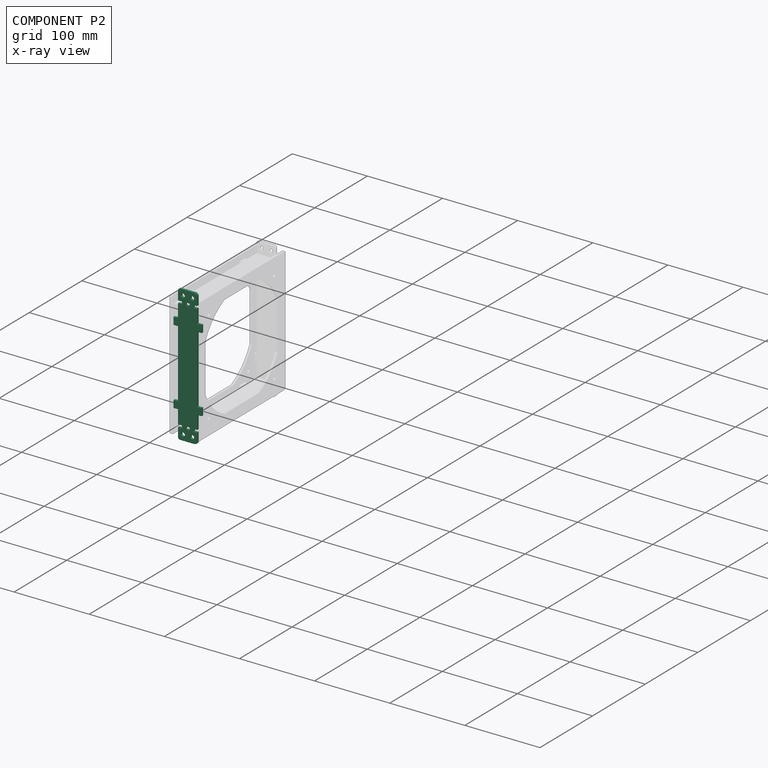
[diagram: component P2 — x-ray view]
COMPONENT P2 — same part as P0 (CADFS 00194423); its construction recipe is shown at P0.
Held by: FASTENED mate "Fastened 4" to P4; FASTENED mate "Fastened 1" to P5.
PROVENANCE & LICENSES
Assembly (occurrences, transforms, mates, per-part STEP geometry): AutoMate dataset, Zenodo record 7776208, CC0.
Construction recipes: CADFS (HuggingFace VladPyatov/CADFS, CC-BY-4.0, layered over the ABC dataset), FeatureScript reconstruction programs keyed by ABC model id.
Join: ABC meta listings map ABC model id -> Onshape documentId; within a shared document, parts are matched by geometric signature (bounding-box dims + volume at 0.1% relative tolerance, exact B-rep face/solid counts).
Verification: 2 of this assembly's 6 components carry a recipe attachment, and every attachment is mesh-verified: the CADFS STEP and the AutoMate member STEP were compared as meshes in their shared local frame (symmetric sampled-point-to-mesh distance); worst across the 2 attachments: below the mesh-comparison resolution (tessellation chordal tolerance ~0.279 mm) on a 186 mm part.
Renders: orthographic iso camera (az 35 / el 25); the floor grid conveys scale (grid pitch printed in each image; no ruler). In the exploded view each component is displaced by its stored offset vector: the offsets alone carry the explosion direction (mate normal/axis signs are not orientation cues and do not encode it), and separation distances are assigned per mate-chain, not proportionally to assembly-order depth.
